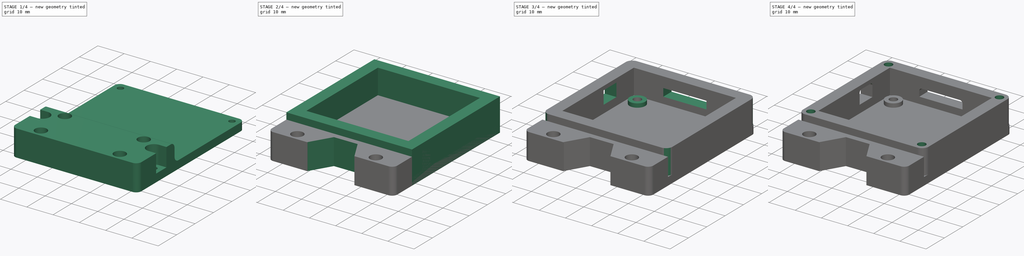
[diagram: build sequence overview — one tinted view per stage of 4, left to right]
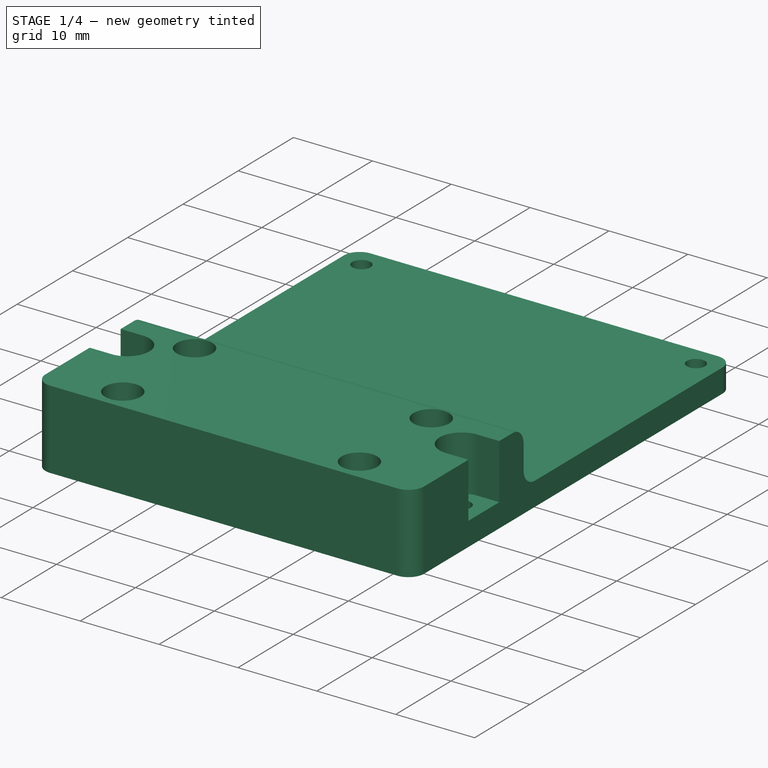
[diagram: stage 1 of 4 — iso view after this stage's code; geometry added in this stage tinted green]
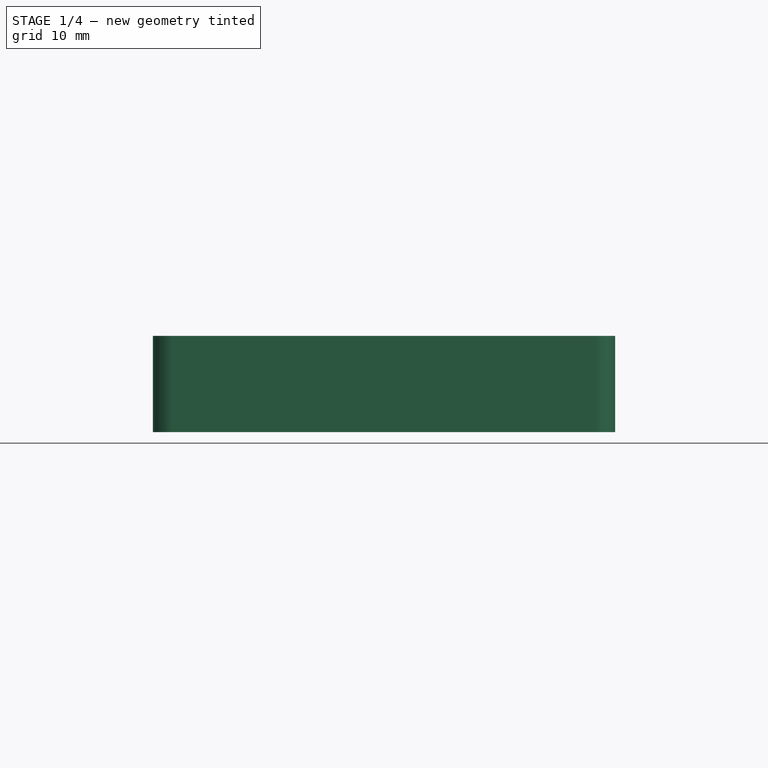
[diagram: stage 1 of 4 — front view after this stage's code; geometry added in this stage tinted green]
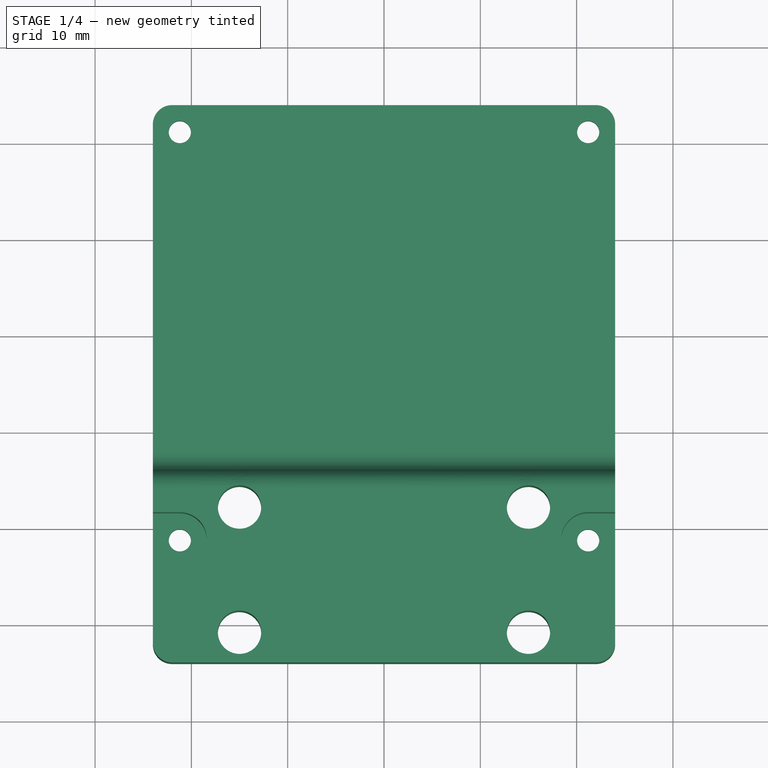
[diagram: stage 1 of 4 — top view after this stage's code; geometry added in this stage tinted green]
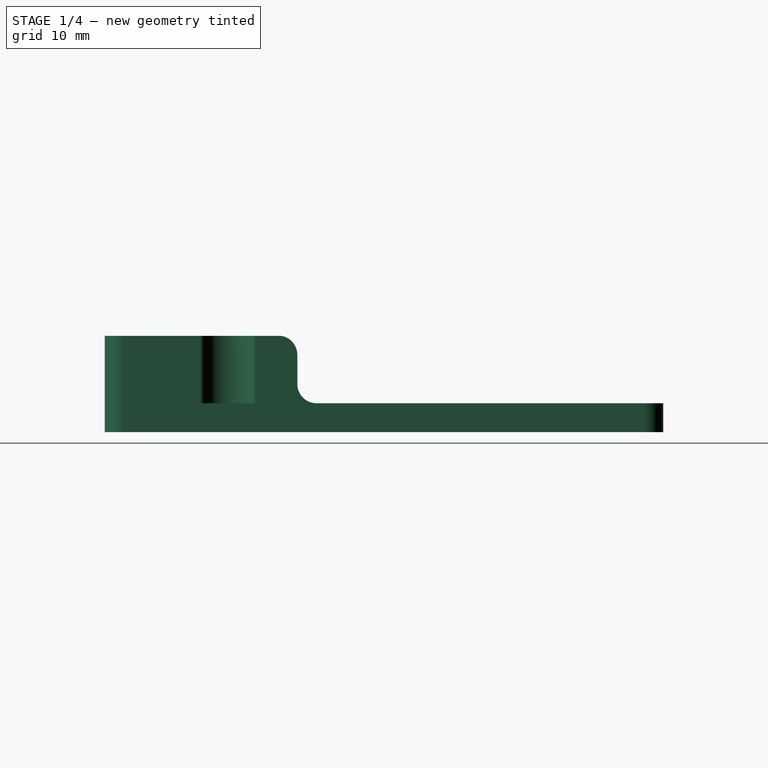
[diagram: stage 1 of 4 — right view after this stage's code; geometry added in this stage tinted green]
FCSTD DOCUMENT  (FreeCAD 1.0R38641 +468 (Git))
Label: arducam_box
License: All rights reserved
LicenseURL: https://en.wikipedia.org/wiki/All_rights_reserved
objects: Sketcher::SketchObject×9, PartDesign::Pad×5, PartDesign::Pocket×4, PartDesign::Fillet×3, PartDesign::Body×2, PartDesign::Mirrored×1
note: 58 computed .brp shape members not serialized (recipe doc carries the construction recipe); baked Part::Feature solids carry a one-line shape summary decoded from their .brp

FEATURE [PartDesign::Body] Body  label="box"
  AllowCompound = false
  Group = -> [Sketch,Pad,Sketch001,Pad001,Fillet,Sketch002,Pad002,Sketch003,Pocket,Sketch004,Pocket001,Fillet001,Sketch005,Pocket002,Mirrored]
  Origin = -> Origin
  Tip = -> Mirrored
FEATURE [Sketcher::SketchObject] Sketch006
  ArcFitTolerance = 1e-06
  AttachmentSupport = -> [XY_Plane001]
  FullyConstrained = false
  MakeInternals = false
  MapMode = 5
  sketch-geometry (23):
    g0: LineSegment [constr] StartX=-21.2 StartY=-21.2 StartZ=0 EndX=21.2 EndY=-21.2 EndZ=0
    g1: LineSegment [constr] StartX=21.2 StartY=-21.2 StartZ=0 EndX=21.2 EndY=21.2 EndZ=0
    g2: LineSegment [constr] StartX=21.2 StartY=21.2 StartZ=0 EndX=-21.2 EndY=21.2 EndZ=0
    g3: LineSegment [constr] StartX=-21.2 StartY=21.2 StartZ=0 EndX=-21.2 EndY=-21.2 EndZ=0
    g4: GeomPoint [constr] X=0 Y=0 Z=0
    g5: Circle CenterX=-21.2 CenterY=21.2 CenterZ=0 NormalX=0 NormalY=0 NormalZ=1 AngleXU=0 Radius=1.15
    g6: Circle CenterX=21.2 CenterY=21.2 CenterZ=0 NormalX=0 NormalY=0 NormalZ=1 AngleXU=0 Radius=1.15
    g7: Circle CenterX=-21.2 CenterY=-21.2 CenterZ=0 NormalX=0 NormalY=0 NormalZ=1 AngleXU=0 Radius=1.15
    g8: Circle CenterX=21.2 CenterY=-21.2 CenterZ=0 NormalX=0 NormalY=0 NormalZ=1 AngleXU=0 Radius=1.15
    g9: LineSegment [constr] StartX=-24 StartY=-24 StartZ=0 EndX=24 EndY=-24 EndZ=0
    g10: LineSegment [constr] StartX=24 StartY=-24 StartZ=0 EndX=24 EndY=24 EndZ=0
    g11: LineSegment StartX=24 StartY=24 StartZ=0 EndX=-24 EndY=24 EndZ=0
    g12: LineSegment [constr] StartX=-24 StartY=24 StartZ=0 EndX=-24 EndY=-24 EndZ=0
    g13: GeomPoint [constr] X=0 Y=0 Z=0
    g14: LineSegment StartX=-24 StartY=24 StartZ=0 EndX=-24 EndY=-34 EndZ=0
    g15: LineSegment StartX=-24 StartY=-34 StartZ=0 EndX=24 EndY=-34 EndZ=0
    g16: LineSegment StartX=24 StartY=-34 StartZ=0 EndX=24 EndY=24 EndZ=0
    g17: LineSegment [constr] StartX=-15 StartY=-17.8647 StartZ=0 EndX=15 EndY=-17.8647 EndZ=0
    g18: LineSegment [constr] StartX=-15 StartY=-30.8647 StartZ=0 EndX=15 EndY=-30.8647 EndZ=0
    g19: Circle CenterX=-15 CenterY=-17.8647 CenterZ=0 NormalX=0 NormalY=0 NormalZ=1 AngleXU=0 Radius=2.25
    g20: Circle CenterX=-15 CenterY=-30.8647 CenterZ=0 NormalX=0 NormalY=0 NormalZ=1 AngleXU=0 Radius=2.25
    g21: Circle CenterX=15 CenterY=-17.8647 CenterZ=0 NormalX=0 NormalY=0 NormalZ=1 AngleXU=0 Radius=2.25
    g22: Circle CenterX=15 CenterY=-30.8647 CenterZ=0 NormalX=0 NormalY=0 NormalZ=1 AngleXU=0 Radius=2.25
  constraints (54):
    c: Coincident(g0,g1)
    c: Coincident(g1,g2)
    c: Coincident(g2,g3)
    c: Coincident(g3,g0)
    c: Horizontal(g0)
    c: Horizontal(g2)
    c: Vertical(g1)
    c: Vertical(g3)
    c: Symmetric(g2,g0,g4)
    c: Coincident(g4,g-1)
    c: DistanceY(g1,g1) = 42.4
    c: DistanceX(g0,g0) = 42.4
    c: Coincident(g5,g2)
    c: Coincident(g6,g1)
    c: Coincident(g7,g0)
    c: Coincident(g8,g0)
    c: Equal(g6,g5)
    c: Equal(g5,g7)
    c: Equal(g7,g8)
    c: Diameter(g6) = 2.3
    c: Coincident(g9,g10)
    c: Coincident(g10,g11)
    c: Coincident(g11,g12)
    c: Coincident(g12,g9)
    c: Horizontal(g9)
    c: Horizontal(g11)
    c: Vertical(g10)
    c: Vertical(g12)
    c: Symmetric(g11,g9,g13)
    c: Coincident(g13,g4)
    c: Equal(g10,g11)
    c: DistanceY(g10,g10) = 48
    c: Coincident(g11,g14)
    c: Vertical(g14)
    c: Coincident(g14,g15)
    c: Coincident(g15,g16)
    c: Coincident(g16,g10)
    c: Vertical(g16)
    c: Horizontal(g15)
    c: DistanceY(g15,g9) = 10
    c: Horizontal(g18)
    c: Vertical(g17,g18)
    c: Symmetric(g17,g17,g-2)
    c: Vertical(g18,g17)
    c: DistanceX(g17,g17) = 30
    c: DistanceY(g18,g17) = 13
    c: Coincident(g19,g17)
    c: Coincident(g20,g18)
    c: Coincident(g21,g17)
    c: Coincident(g22,g18)
    c: Equal(g22,g21)
    c: Equal(g21,g20)
    c: Equal(g20,g19)
    c: Diameter(g21) = 4.5
FEATURE [PartDesign::Pad] Pad003
  Direction = (0,0,1)
  Length = 3
  Length2 = 10
  Profile = -> Sketch006
  ReferenceAxis = -> Sketch006 [N_Axis]
  Refine = true
  Suppressed = false
  Type = 0
FEATURE [Sketcher::SketchObject] Sketch007
  ArcFitTolerance = 1e-06
  AttachmentSupport = -> [Pad003]
  ExternalGeometry = -> [Pad003]
  FullyConstrained = false
  MakeInternals = false
  MapMode = 5
  Placement = pos=(0,0,3) rot=(0,0,1;0rad)
  sketch-geometry (20):
    g0: LineSegment [constr] StartX=24 StartY=-34 StartZ=0 EndX=24 EndY=-14 EndZ=0
    g1: LineSegment StartX=24 StartY=-14 StartZ=0 EndX=-24 EndY=-14 EndZ=0
    g2: LineSegment [constr] StartX=-24 StartY=-14 StartZ=0 EndX=-24 EndY=-34 EndZ=0
    g3: LineSegment StartX=-24 StartY=-34 StartZ=0 EndX=24 EndY=-34 EndZ=0
    g4: Circle CenterX=-15 CenterY=-17.8647 CenterZ=0 NormalX=0 NormalY=0 NormalZ=1 AngleXU=0 Radius=2.25
    g5: Circle [constr] CenterX=-21.2179 CenterY=-21.2179 CenterZ=0 NormalX=0 NormalY=0 NormalZ=1 AngleXU=0 Radius=2.78208
    g6: Circle CenterX=-15 CenterY=-30.8647 CenterZ=0 NormalX=0 NormalY=0 NormalZ=1 AngleXU=0 Radius=2.25
    g7: Circle CenterX=15 CenterY=-30.8647 CenterZ=0 NormalX=0 NormalY=0 NormalZ=1 AngleXU=0 Radius=2.25
    g8: Circle CenterX=15 CenterY=-17.8647 CenterZ=0 NormalX=0 NormalY=0 NormalZ=1 AngleXU=0 Radius=2.25
    g9: Circle [constr] CenterX=21.2 CenterY=-21.2 CenterZ=0 NormalX=0 NormalY=0 NormalZ=1 AngleXU=0 Radius=2.8
    g10: LineSegment StartX=-24 StartY=-34 StartZ=0 EndX=-24 EndY=-24 EndZ=0
    g11: LineSegment StartX=-24 StartY=-24 StartZ=0 EndX=-21.2179 EndY=-24 EndZ=0
    g12: LineSegment StartX=-21.2 StartY=-18.3999 StartZ=0 EndX=-24 EndY=-18.4 EndZ=0
    g13: LineSegment StartX=-24 StartY=-18.4 StartZ=0 EndX=-24 EndY=-14 EndZ=0
    g14: LineSegment StartX=24 StartY=-14 StartZ=0 EndX=24 EndY=-18.4006 EndZ=0
    g15: LineSegment StartX=24 StartY=-18.4006 StartZ=0 EndX=21.1412 EndY=-18.4006 EndZ=0
    g16: LineSegment StartX=21.2 StartY=-24 StartZ=0 EndX=24 EndY=-24 EndZ=0
    g17: LineSegment StartX=24 StartY=-24 StartZ=0 EndX=24 EndY=-34 EndZ=0
    g18: ArcOfCircle CenterX=21.2 CenterY=-21.2 CenterZ=0 NormalX=0 NormalY=0 NormalZ=1 AngleXU=0 Radius=2.8 StartAngle=1.59179 EndAngle=4.71239
    g19: ArcOfCircle CenterX=-21.2 CenterY=-21.2 CenterZ=0 NormalX=0 NormalY=0 NormalZ=1 AngleXU=0 Radius=2.80006 StartAngle=4.70599 EndAngle=7.85398
  constraints (45):
    c: Coincident(g0,g1)
    c: Coincident(g1,g2)
    c: Coincident(g2,g3)
    c: Coincident(g3,g0)
    c: Horizontal(g1)
    c: Horizontal(g3)
    c: Coincident(g0,g-4)
    c: PointOnObject(g1,g-3)
    c: Coincident(g4,g-6)
    c: Equal(g4,g-6)
    c: Coincident(g6,g-5)
    c: Equal(g6,g-5)
    c: Coincident(g7,g-8)
    c: Equal(g7,g-8)
    c: Coincident(g8,g-7)
    c: Equal(g8,g-7)
    c: Coincident(g9,g-10)
    c: Tangent(g9,g0)
    c: Tangent(g5,g2)
    c: Coincident(g2,g10)
    c: Symmetric(g2,g2,g10)
    c: Vertical(g10)
    c: Coincident(g10,g11)
    c: PointOnObject(g11,g5)
    c: Tangent(g11,g5)
    c: PointOnObject(g12,g2)
    c: Coincident(g12,g13)
    c: Coincident(g13,g1)
    c: Coincident(g0,g14)
    c: PointOnObject(g14,g0)
    c: Vertical(g14)
    c: Coincident(g14,g15)
    c: PointOnObject(g15,g9)
    c: Symmetric(g0,g0,g16)
    c: Coincident(g16,g17)
    c: Coincident(g17,g0)
    c: Horizontal(g11)
    c: Horizontal(g16)
    c: Horizontal(g15)
    c: Coincident(g18,g9)
    c: Coincident(g18,g16)
    c: Coincident(g18,g15)
    c: Coincident(g19,g-9)
    c: Coincident(g19,g11)
    c: Coincident(g19,g12)
FEATURE [PartDesign::Pad] Pad004
  BaseFeature = -> Pad003
  Direction = (0,0,1)
  Length = 7
  Length2 = 10
  Profile = -> Sketch007
  ReferenceAxis = -> Sketch007 [N_Axis]
  Refine = true
  Suppressed = false
  Type = 0
FEATURE [PartDesign::Fillet] Fillet002
  Base = -> Pad004 [Edge17,Edge37,Edge1,Edge2,Edge62,Edge61]
  BaseFeature = -> Pad004
  Radius = 2
  Refine = true
  SupportTransform = false
  Suppressed = false
  UseAllEdges = false
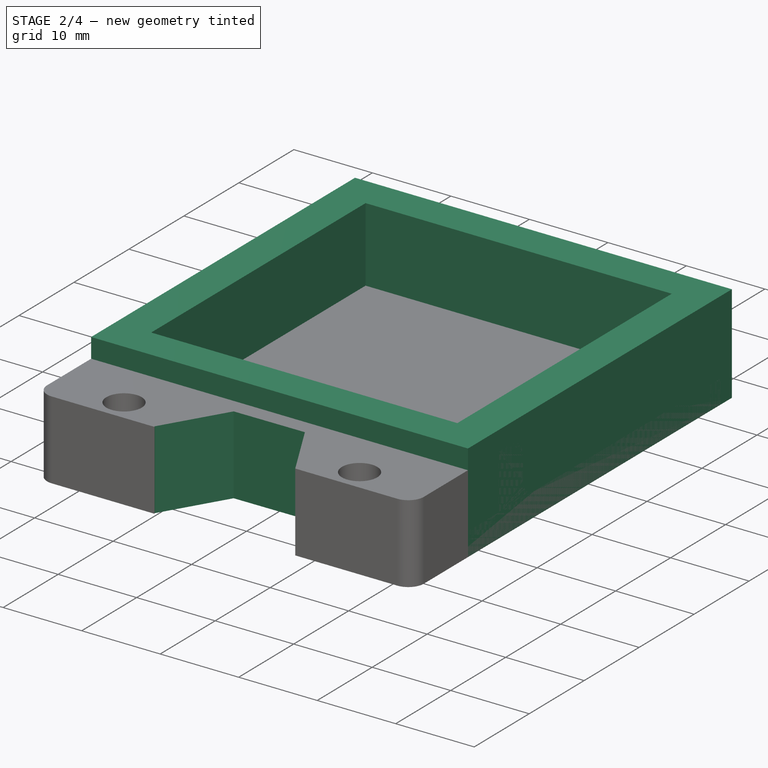
[diagram: stage 2 of 4 — iso view after this stage's code; geometry added in this stage tinted green]
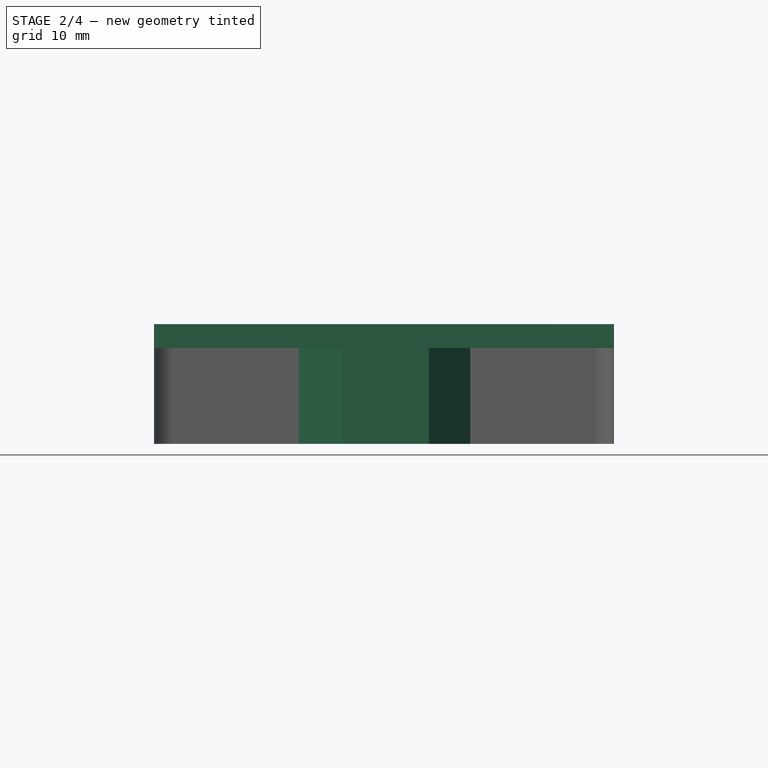
[diagram: stage 2 of 4 — front view after this stage's code; geometry added in this stage tinted green]
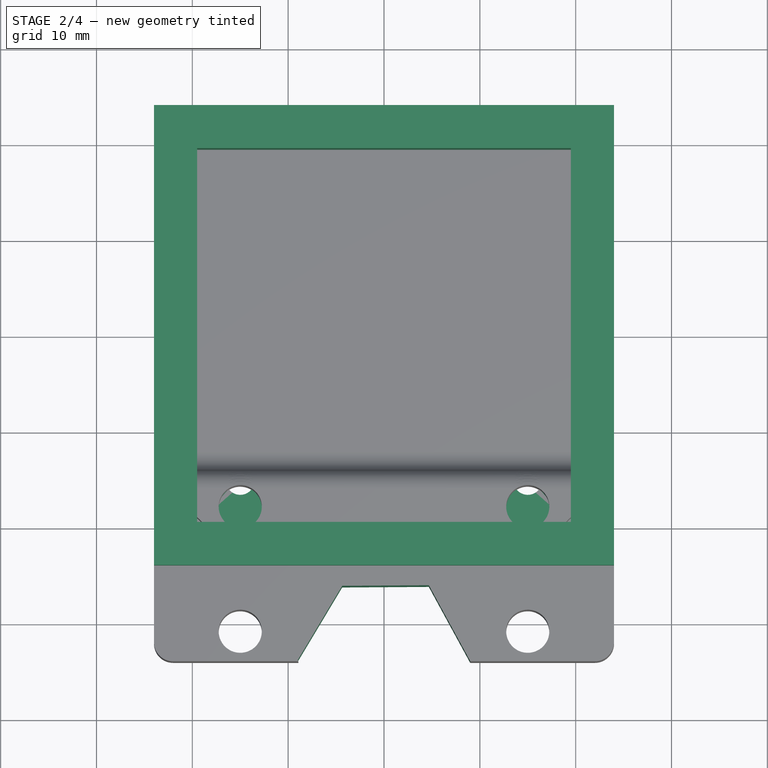
[diagram: stage 2 of 4 — top view after this stage's code; geometry added in this stage tinted green]
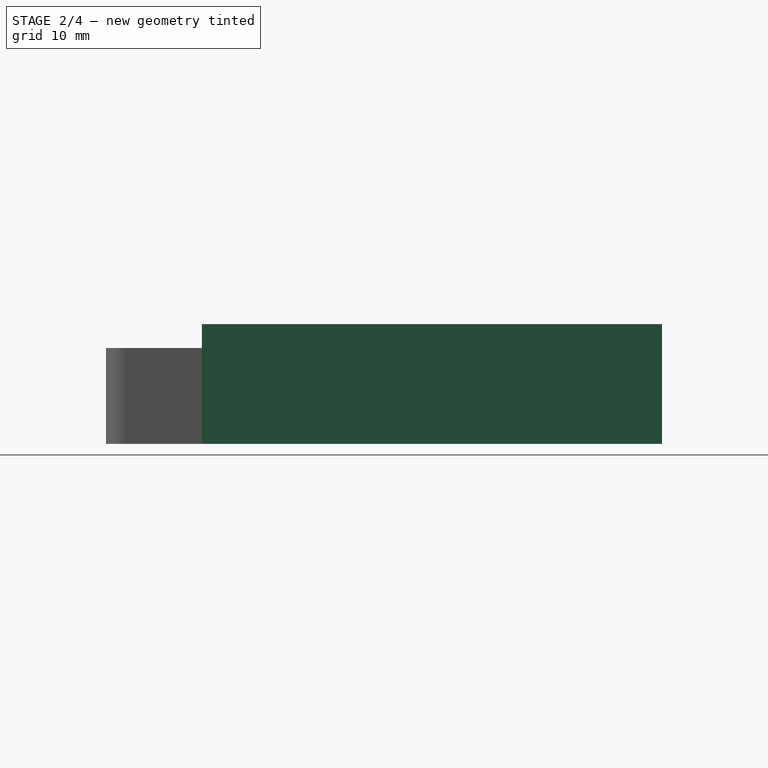
[diagram: stage 2 of 4 — right view after this stage's code; geometry added in this stage tinted green]
FEATURE [Sketcher::SketchObject] Sketch
  ArcFitTolerance = 1e-06
  AttachmentSupport = -> [XY_Plane]
  FullyConstrained = false
  MakeInternals = false
  MapMode = 5
  sketch-geometry (27):
    g0: Circle [constr] CenterX=10.15 CenterY=0 CenterZ=0 NormalX=0 NormalY=0 NormalZ=1 AngleXU=0 Radius=3.5
    g1: Circle [constr] CenterX=-10.15 CenterY=0 CenterZ=0 NormalX=0 NormalY=0 NormalZ=1 AngleXU=0 Radius=3.5
    g2: ArcOfCircle CenterX=-10.15 CenterY=0 CenterZ=0 NormalX=0 NormalY=0 NormalZ=1 AngleXU=0 Radius=3.5 StartAngle=1.5708 EndAngle=4.71239
    g3: ArcOfCircle CenterX=10.15 CenterY=0 CenterZ=0 NormalX=0 NormalY=0 NormalZ=1 AngleXU=0 Radius=3.5 StartAngle=4.71239 EndAngle=7.85398
    g4: LineSegment [constr] StartX=10.15 StartY=-7.3 StartZ=0 EndX=10.15 EndY=7.3 EndZ=0
    g5: LineSegment [constr] StartX=15 StartY=-15 StartZ=0 EndX=15 EndY=15 EndZ=0
    g6: LineSegment [constr] StartX=15 StartY=15 StartZ=0 EndX=-15 EndY=15 EndZ=0
    g7: LineSegment [constr] StartX=-15 StartY=15 StartZ=0 EndX=-15 EndY=-15 EndZ=0
    g8: LineSegment [constr] StartX=-15 StartY=-15 StartZ=0 EndX=15 EndY=-15 EndZ=0
    g9: Circle CenterX=-15 CenterY=15 CenterZ=0 NormalX=0 NormalY=0 NormalZ=1 AngleXU=0 Radius=1.5
    g10: Circle CenterX=15 CenterY=15 CenterZ=0 NormalX=0 NormalY=0 NormalZ=1 AngleXU=0 Radius=1.5
    g11: Circle CenterX=15 CenterY=-15 CenterZ=0 NormalX=0 NormalY=0 NormalZ=1 AngleXU=0 Radius=1.5
    g12: Circle CenterX=-15 CenterY=-15 CenterZ=0 NormalX=0 NormalY=0 NormalZ=1 AngleXU=0 Radius=1.5
    g13: LineSegment [constr] StartX=10.15 StartY=-7.3 StartZ=0 EndX=10.15 EndY=7.3 EndZ=0
    g14: LineSegment [constr] StartX=-10.15 StartY=7.3 StartZ=0 EndX=-10.15 EndY=-7.3 EndZ=0
    g15: GeomPoint [constr] X=0 Y=0 Z=0
    g16: LineSegment StartX=-10.15 StartY=7.3 StartZ=0 EndX=10.15 EndY=7.3 EndZ=0
    g17: LineSegment StartX=10.15 StartY=7.3 StartZ=0 EndX=10.15 EndY=3.5 EndZ=0
    g18: LineSegment StartX=-10.15 StartY=3.5 StartZ=0 EndX=-10.15 EndY=7.3 EndZ=0
    g19: LineSegment StartX=-10.15 StartY=-3.5 StartZ=0 EndX=-10.15 EndY=-7.3 EndZ=0
    g20: LineSegment StartX=-10.15 StartY=-7.3 StartZ=0 EndX=10.15 EndY=-7.3 EndZ=0
    g21: LineSegment StartX=10.15 StartY=-7.3 StartZ=0 EndX=10.15 EndY=-3.5 EndZ=0
    g22: LineSegment StartX=-24 StartY=-24 StartZ=0 EndX=24 EndY=-24 EndZ=0
    g23: LineSegment StartX=24 StartY=-24 StartZ=0 EndX=24 EndY=24 EndZ=0
    g24: LineSegment StartX=-24 StartY=24 StartZ=0 EndX=-24 EndY=-24 EndZ=0
    g25: GeomPoint [constr] X=0 Y=0 Z=0
    g26: LineSegment StartX=-24 StartY=24 StartZ=0 EndX=24 EndY=24 EndZ=0
  constraints (61):
    c: PointOnObject(g0,g-1)
    c: PointOnObject(g3,g0)
    c: PointOnObject(g1,g-1)
    c: PointOnObject(g2,g1)
    c: Vertical(g1,g2)
    c: Vertical(g3,g0)
    c: Coincident(g2,g1)
    c: Coincident(g3,g0)
    c: Vertical(g4)
    c: PointOnObject(g3,g4)
    c: PointOnObject(g3,g4)
    c: DistanceY(g4,g4) = 14.6
    c: Radius(g3) = 3.5
    c: Radius(g2) = 3.5
    c: Vertical(g5)
    c: Vertical(g7)
    c: Horizontal(g6)
    c: Horizontal(g8)
    c: DistanceX(g6,g6) = 30
    c: DistanceY(g5,g5) = 30
    c: Coincident(g9,g6)
    c: Diameter(g10) = 3
    c: Coincident(g10,g5)
    c: Coincident(g11,g5)
    c: Coincident(g12,g7)
    c: Equal(g10,g9)
    c: Equal(g9,g12)
    c: Equal(g12,g11)
    c: Vertical(g13)
    c: Vertical(g14)
    c: Coincident(g15,g-1)
    c: Symmetric(g14,g4,g15)
    c: PointOnObject(g2,g14)
    c: Coincident(g14,g16)
    c: Coincident(g16,g4)
    c: Horizontal(g16)
    c: Coincident(g16,g17)
    c: Coincident(g17,g3)
    c: Coincident(g18,g2)
    c: Coincident(g18,g14)
    c: Vertical(g18)
    c: Coincident(g19,g2)
    c: Coincident(g19,g14)
    c: Coincident(g20,g14)
    c: Coincident(g20,g4)
    c: Horizontal(g20)
    c: Coincident(g21,g13)
    c: Coincident(g21,g3)
    c: Vertical(g21)
    c: Coincident(g22,g23)
    c: Coincident(g24,g22)
    c: Horizontal(g22)
    c: Vertical(g23)
    c: Vertical(g24)
    c: Symmetric(g23,g22,g25)
    c: Coincident(g25,g15)
    c: Coincident(g24,g26)
    c: Coincident(g26,g23)
    c: Horizontal(g26)
    c: DistanceX(g26,g26) = 48
    c: DistanceY(g23,g23) = 48
FEATURE [PartDesign::Pad] Pad
  Direction = (0,0,1)
  Length = 2.5
  Length2 = 10
  Profile = -> Sketch
  ReferenceAxis = -> Sketch [N_Axis]
  Refine = true
  Suppressed = false
  Type = 0
FEATURE [Sketcher::SketchObject] Sketch001
  ArcFitTolerance = 1e-06
  AttachmentSupport = -> [Pad]
  ExternalGeometry = -> [Pad]
  FullyConstrained = true
  MakeInternals = false
  MapMode = 5
  Placement = pos=(0,0,2.5) rot=(0,0,1;0rad)
  sketch-geometry (10):
    g0: LineSegment StartX=-24 StartY=-24 StartZ=0 EndX=24 EndY=-24 EndZ=0
    g1: LineSegment StartX=24 StartY=-24 StartZ=0 EndX=24 EndY=24 EndZ=0
    g2: LineSegment StartX=24 StartY=24 StartZ=0 EndX=-24 EndY=24 EndZ=0
    g3: LineSegment StartX=-24 StartY=24 StartZ=0 EndX=-24 EndY=-24 EndZ=0
    g4: GeomPoint [constr] X=0 Y=0 Z=0
    g5: LineSegment StartX=-19.5 StartY=-19.5 StartZ=0 EndX=19.5 EndY=-19.5 EndZ=0
    g6: LineSegment StartX=19.5 StartY=-19.5 StartZ=0 EndX=19.5 EndY=19.5 EndZ=0
    g7: LineSegment StartX=19.5 StartY=19.5 StartZ=0 EndX=-19.5 EndY=19.5 EndZ=0
    g8: LineSegment StartX=-19.5 StartY=19.5 StartZ=0 EndX=-19.5 EndY=-19.5 EndZ=0
    g9: GeomPoint [constr] X=0 Y=0 Z=0
  constraints (23):
    c: Coincident(g0,g1)
    c: Coincident(g1,g2)
    c: Coincident(g2,g3)
    c: Coincident(g3,g0)
    c: Horizontal(g0)
    c: Horizontal(g2)
    c: Vertical(g1)
    c: Vertical(g3)
    c: Symmetric(g2,g0,g4)
    c: Coincident(g4,g-1)
    c: Coincident(g1,g-3)
    c: Coincident(g5,g6)
    c: Coincident(g6,g7)
    c: Coincident(g7,g8)
    c: Coincident(g8,g5)
    c: Horizontal(g5)
    c: Horizontal(g7)
    c: Vertical(g6)
    c: Vertical(g8)
    c: Symmetric(g7,g5,g9)
    c: Coincident(g9,g4)
    c: DistanceX(g6,g1) = 4.5
    c: DistanceY(g6,g1) = 4.5
FEATURE [PartDesign::Pad] Pad001
  BaseFeature = -> Pad
  Direction = (0,0,1)
  Length = 10
  Length2 = 10
  Profile = -> Sketch001
  ReferenceAxis = -> Sketch001 [N_Axis]
  Refine = true
  Suppressed = false
  Type = 0
FEATURE [Sketcher::SketchObject] Sketch008
  ArcFitTolerance = 1e-06
  AttachmentSupport = -> [Fillet002]
  ExternalGeometry = -> [Fillet002]
  FullyConstrained = false
  MakeInternals = false
  MapMode = 5
  Placement = pos=(0,0,0) rot=(1,0,0;3.14159rad)
  sketch-geometry (7):
    g0: LineSegment StartX=4.46484 StartY=41.8144 StartZ=0 EndX=-4.57004 EndY=41.7534 EndZ=0
    g1: LineSegment StartX=-4.57004 StartY=41.7534 StartZ=0 EndX=-8.99918 EndY=33.8784 EndZ=0
    g2: LineSegment StartX=-8.99918 StartY=33.8784 StartZ=0 EndX=-4.35884 EndY=26.126 EndZ=0
    g3: LineSegment StartX=-4.35884 StartY=26.126 StartZ=0 EndX=4.67606 EndY=26.0668 EndZ=0
    g4: LineSegment StartX=4.67606 StartY=26.0668 StartZ=0 EndX=9 EndY=34 EndZ=0
    g5: LineSegment StartX=9 StartY=34 StartZ=0 EndX=4.46484 EndY=41.8144 EndZ=0
    g6: Circle [constr] CenterX=3.9e-15 CenterY=34 CenterZ=0 NormalX=0 NormalY=0 NormalZ=1 AngleXU=0 Radius=9
  constraints (15):
    c: Coincident(g0,g1)
    c: Coincident(g1,g2)
    c: Coincident(g2,g3)
    c: Coincident(g3,g4)
    c: Coincident(g4,g5)
    c: Coincident(g5,g0)
    c: Equal(g0, g1-g5) x5
    c: PointOnObject(g0,g6)
    c: PointOnObject(g1,g6)
    c: PointOnObject(g2,g6)
    c: PointOnObject(g4,g6)
    c: PointOnObject(g5,g6)
    c: Symmetric(g-3,g-3,g6)
    c: Diameter(g6) = 18
    c: PointOnObject(g4,g-3)
FEATURE [PartDesign::Pocket] Pocket003
  BaseFeature = -> Fillet002
  Direction = (0,0,1)
  Length = 5
  Length2 = 5
  Profile = -> Sketch008
  ReferenceAxis = -> Sketch008 [N_Axis]
  Refine = true
  Suppressed = false
  Type = 1
FEATURE [PartDesign::Body] Body001  label="lid"
  AllowCompound = false
  Group = -> [Sketch006,Pad003,Sketch007,Pad004,Fillet002,Sketch008,Pocket003]
  Origin = -> Origin001
  Tip = -> Pocket003
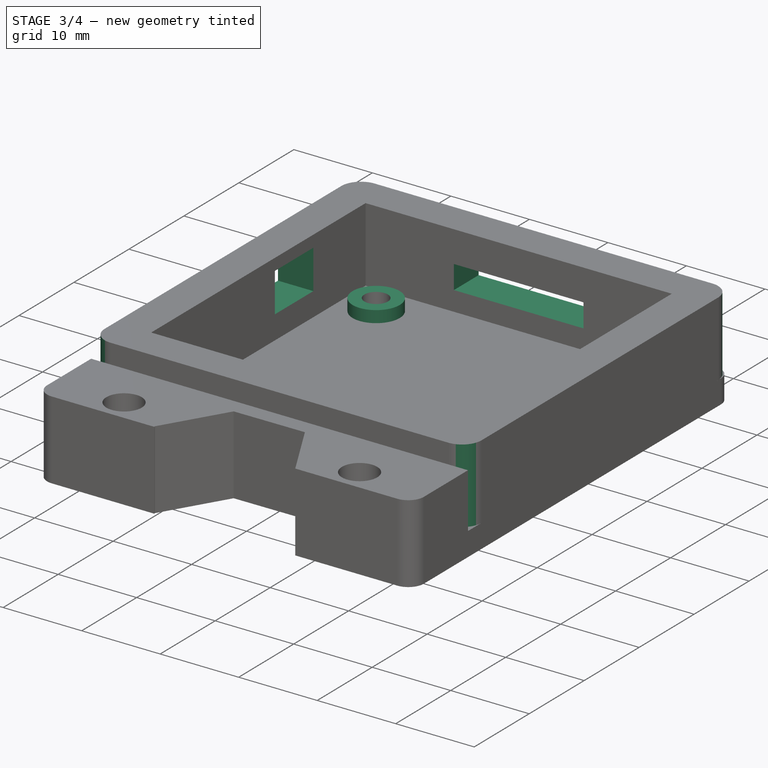
[diagram: stage 3 of 4 — iso view after this stage's code; geometry added in this stage tinted green]
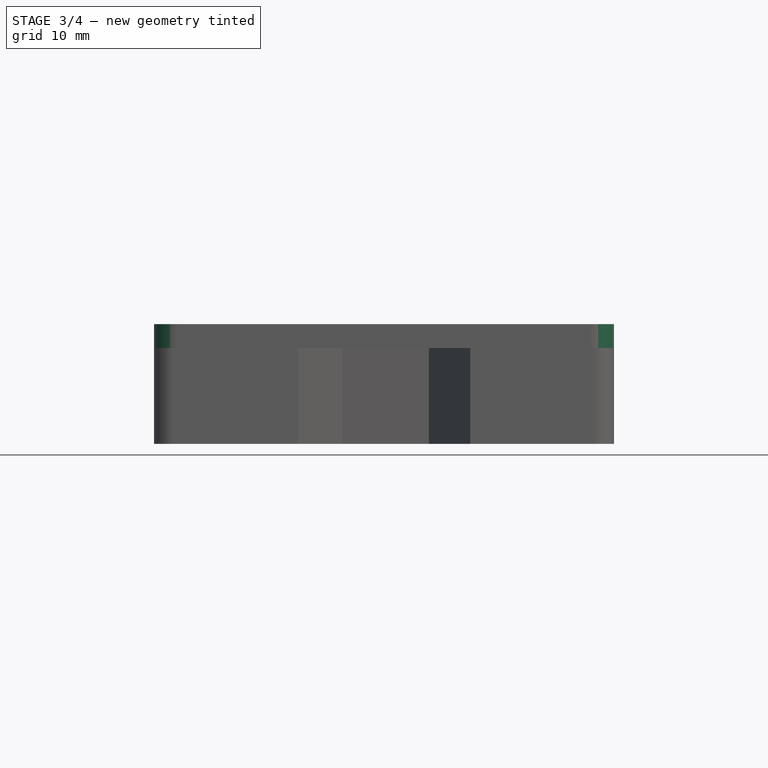
[diagram: stage 3 of 4 — front view after this stage's code; geometry added in this stage tinted green]
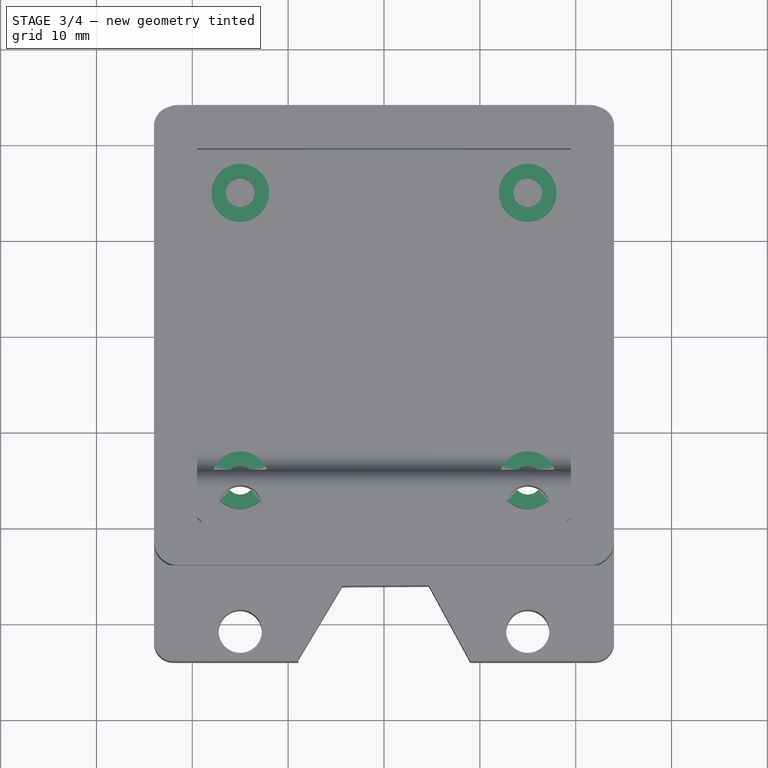
[diagram: stage 3 of 4 — top view after this stage's code; geometry added in this stage tinted green]
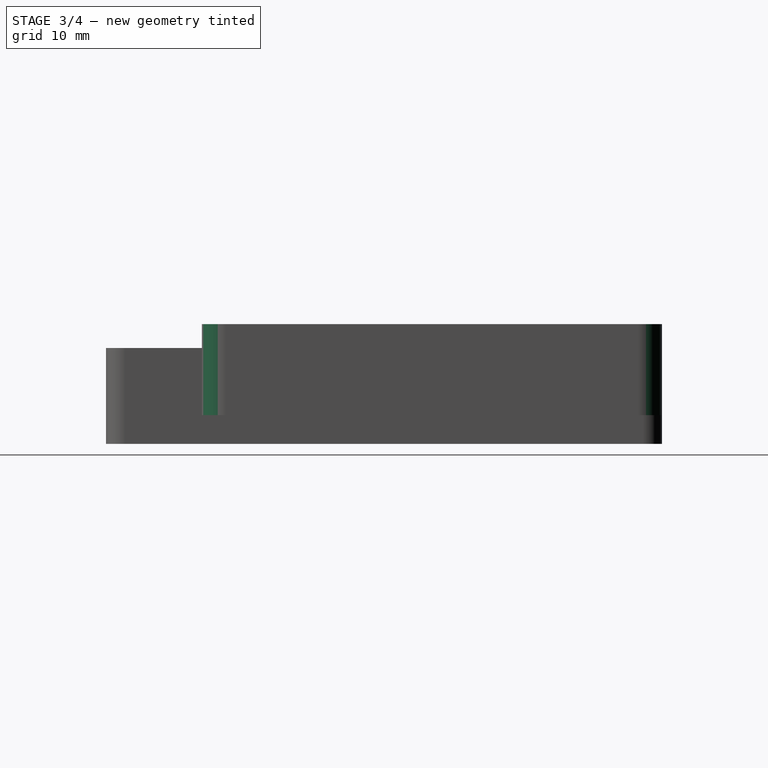
[diagram: stage 3 of 4 — right view after this stage's code; geometry added in this stage tinted green]
FEATURE [PartDesign::Fillet] Fillet
  Base = -> Pad001 [Edge57,Edge58,Edge60,Edge59]
  BaseFeature = -> Pad001
  Radius = 2.5
  Refine = true
  SupportTransform = false
  Suppressed = false
  UseAllEdges = false
FEATURE [Sketcher::SketchObject] Sketch002
  ArcFitTolerance = 1e-06
  AttachmentSupport = -> [Fillet]
  ExternalGeometry = -> [Fillet]
  FullyConstrained = false
  MakeInternals = false
  MapMode = 5
  Placement = pos=(0,0,2.5) rot=(0,0,1;0rad)
  sketch-geometry (8):
    g0: Circle CenterX=15 CenterY=15 CenterZ=0 NormalX=0 NormalY=0 NormalZ=1 AngleXU=0 Radius=1.5
    g1: Circle CenterX=15 CenterY=15 CenterZ=0 NormalX=0 NormalY=0 NormalZ=1 AngleXU=0 Radius=3
    g2: Circle CenterX=-15 CenterY=15 CenterZ=0 NormalX=0 NormalY=0 NormalZ=1 AngleXU=0 Radius=1.5
    g3: Circle CenterX=-15 CenterY=15 CenterZ=0 NormalX=0 NormalY=0 NormalZ=1 AngleXU=0 Radius=3
    g4: Circle CenterX=15 CenterY=-15 CenterZ=0 NormalX=0 NormalY=0 NormalZ=1 AngleXU=0 Radius=1.5
    g5: Circle CenterX=15 CenterY=-15 CenterZ=0 NormalX=0 NormalY=0 NormalZ=1 AngleXU=0 Radius=3
    g6: Circle CenterX=-15 CenterY=-15 CenterZ=0 NormalX=0 NormalY=0 NormalZ=1 AngleXU=0 Radius=1.5
    g7: Circle CenterX=-15 CenterY=-15 CenterZ=0 NormalX=0 NormalY=0 NormalZ=1 AngleXU=0 Radius=3
  constraints (8):
    c: Coincident(g1,g0)
    c: Diameter(g1) = 6
    c: Coincident(g3,g2)
    c: Coincident(g5,g4)
    c: Coincident(g7,g6)
    c: Diameter(g3) = 6
    c: Diameter(g5) = 6
    c: Diameter(g7) = 6
FEATURE [PartDesign::Pad] Pad002
  BaseFeature = -> Fillet
  Direction = (0,0,1)
  Length = 2
  Length2 = 10
  Profile = -> Sketch002
  ReferenceAxis = -> Sketch002 [N_Axis]
  Refine = true
  Suppressed = false
  Type = 0
FEATURE [Sketcher::SketchObject] Sketch003
  ArcFitTolerance = 1e-06
  AttachmentSupport = -> [Pad002]
  ExternalGeometry = -> [Pad002]
  FullyConstrained = true
  MakeInternals = false
  MapMode = 5
  Placement = pos=(0,19.5,0) rot=(1,0,0;1.5708rad)
  sketch-geometry (5):
    g0: LineSegment StartX=-8.25 StartY=5.5 StartZ=0 EndX=8.25 EndY=5.5 EndZ=0
    g1: LineSegment StartX=8.25 StartY=5.5 StartZ=0 EndX=8.25 EndY=8.5 EndZ=0
    g2: LineSegment StartX=8.25 StartY=8.5 StartZ=0 EndX=-8.25 EndY=8.5 EndZ=0
    g3: LineSegment StartX=-8.25 StartY=8.5 StartZ=0 EndX=-8.25 EndY=5.5 EndZ=0
    g4: GeomPoint [constr] X=0 Y=7 Z=0
  constraints (13):
    c: Coincident(g0,g1)
    c: Coincident(g1,g2)
    c: Coincident(g2,g3)
    c: Coincident(g3,g0)
    c: Horizontal(g0)
    c: Horizontal(g2)
    c: Vertical(g1)
    c: Vertical(g3)
    c: Symmetric(g2,g0,g4)
    c: PointOnObject(g4,g-2)
    c: DistanceX(g2,g2) = 16.5
    c: DistanceY(g1,g1) = 3
    c: DistanceY(g-3,g0) = 3
FEATURE [PartDesign::Pocket] Pocket
  BaseFeature = -> Pad002
  Direction = (0,1,-2e-16)
  Length = 5
  Length2 = 5
  Profile = -> Sketch003
  ReferenceAxis = -> Sketch003 [N_Axis]
  Refine = true
  Suppressed = false
  Type = 0
FEATURE [Sketcher::SketchObject] Sketch004
  ArcFitTolerance = 1e-06
  AttachmentSupport = -> [Pocket]
  ExternalGeometry = -> [Pocket]
  FullyConstrained = true
  MakeInternals = false
  MapMode = 5
  Placement = pos=(-19.5,0,0) rot=(0.57735,0.57735,0.57735;2.0944rad)
  sketch-geometry (5):
    g0: LineSegment StartX=3 StartY=11 StartZ=0 EndX=3 EndY=6 EndZ=0
    g1: LineSegment StartX=3 StartY=6 StartZ=0 EndX=10 EndY=6 EndZ=0
    g2: LineSegment StartX=10 StartY=6 StartZ=0 EndX=10 EndY=11 EndZ=0
    g3: LineSegment StartX=10 StartY=11 StartZ=0 EndX=3 EndY=11 EndZ=0
    g4: GeomPoint [constr] X=6.5 Y=8.5 Z=0
  constraints (13):
    c: Coincident(g0,g1)
    c: Coincident(g1,g2)
    c: Coincident(g2,g3)
    c: Coincident(g3,g0)
    c: Vertical(g0)
    c: Vertical(g2)
    c: Horizontal(g1)
    c: Horizontal(g3)
    c: Symmetric(g2,g0,g4)
    c: DistanceX(g3,g3) = 7
    c: DistanceX(g4,g-3) = 13
    c: Distance(g2,g2) = 5
    c: DistanceY(g-3,g1) = 3.5
FEATURE [PartDesign::Pocket] Pocket001
  BaseFeature = -> Pocket
  Direction = (-1,0,0)
  Length = 5
  Length2 = 5
  Profile = -> Sketch004
  ReferenceAxis = -> Sketch004 [N_Axis]
  Refine = true
  Suppressed = false
  Type = 0
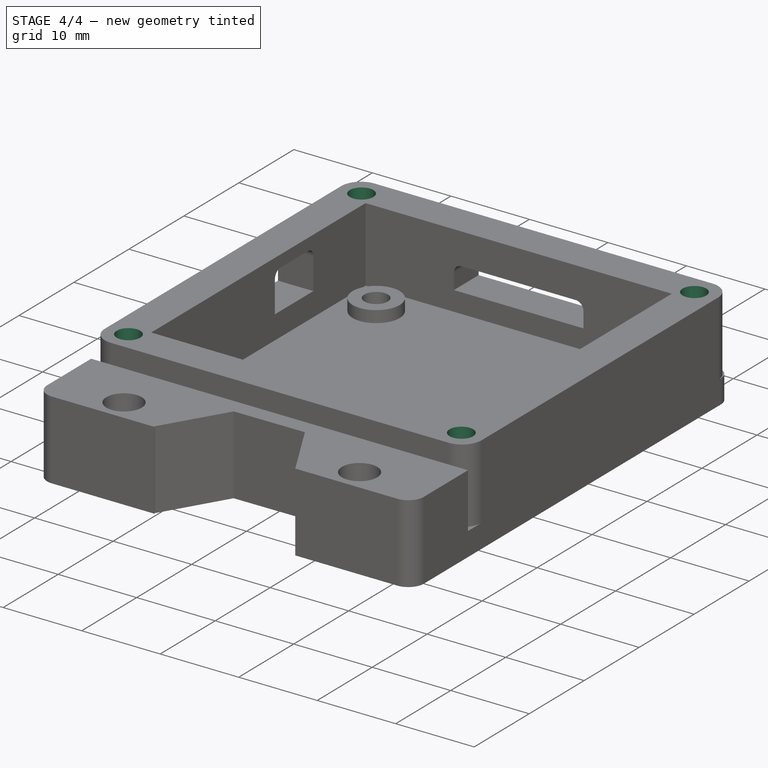
[diagram: stage 4 of 4 — iso view after this stage's code; geometry added in this stage tinted green]
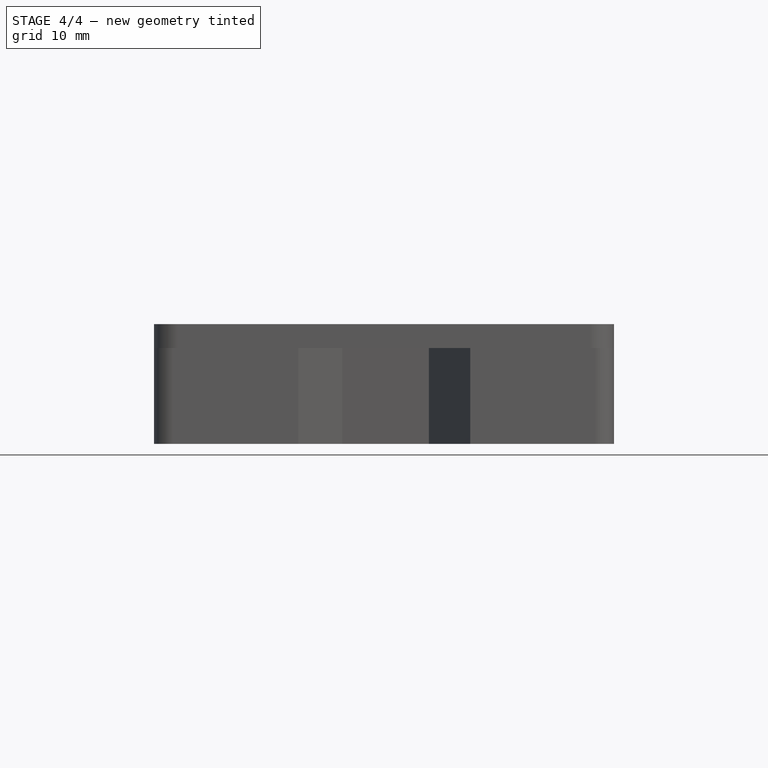
[diagram: stage 4 of 4 — front view after this stage's code; geometry added in this stage tinted green]
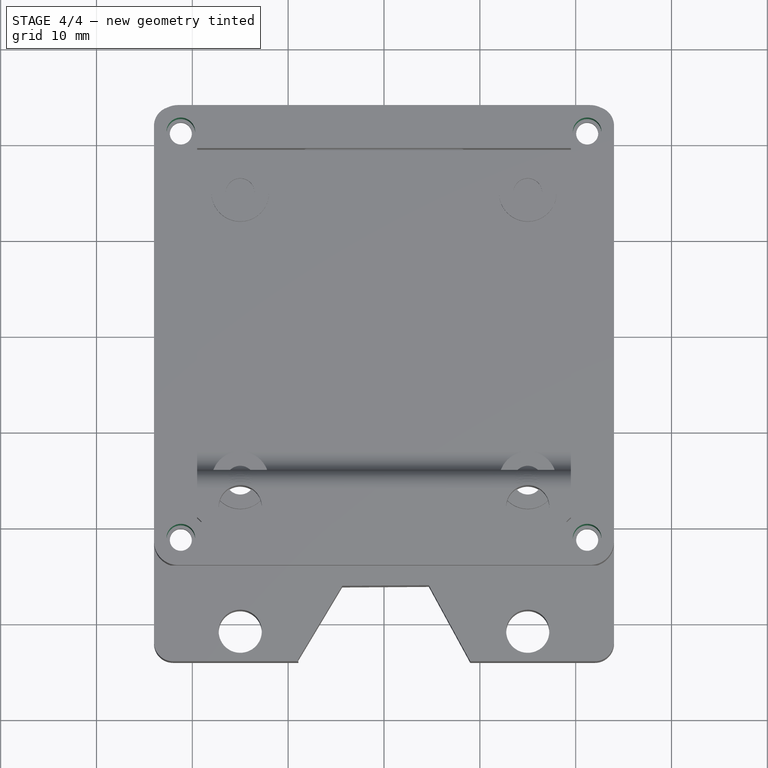
[diagram: stage 4 of 4 — top view after this stage's code; geometry added in this stage tinted green]
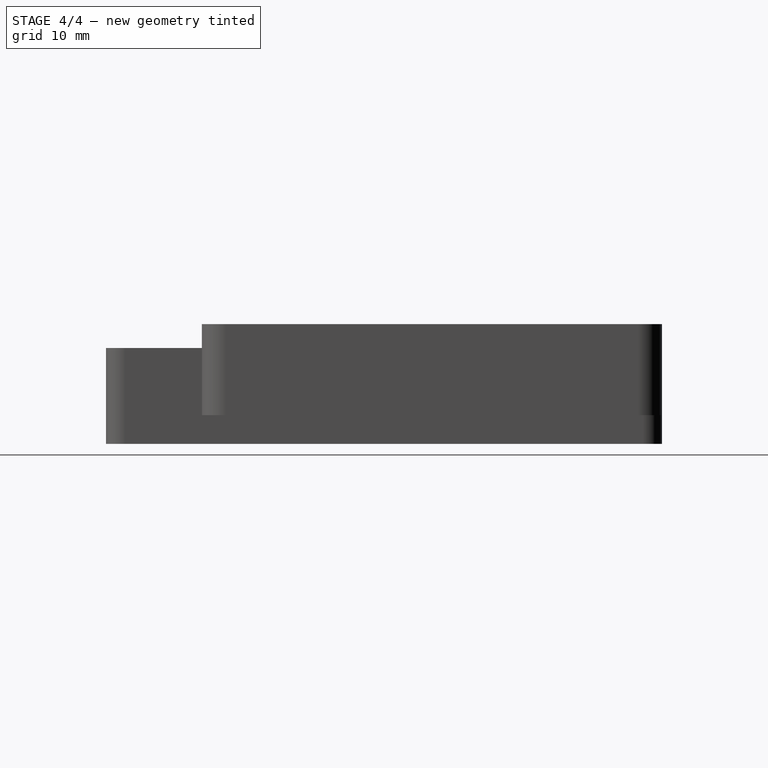
[diagram: stage 4 of 4 — right view after this stage's code; geometry added in this stage tinted green]
FEATURE [PartDesign::Fillet] Fillet001
  Base = -> Pocket001 [Edge75,Edge77,Edge85,Edge87]
  BaseFeature = -> Pocket001
  Radius = 1
  Refine = true
  SupportTransform = false
  Suppressed = false
  UseAllEdges = false
FEATURE [Sketcher::SketchObject] Sketch005
  ArcFitTolerance = 1e-06
  AttachmentSupport = -> [Fillet001]
  ExternalGeometry = -> [Fillet001]
  FullyConstrained = true
  MakeInternals = false
  MapMode = 5
  Placement = pos=(0,0,12.5) rot=(0,0,1;0rad)
  sketch-geometry (2):
    g0: Circle CenterX=-21.2 CenterY=21.2 CenterZ=0 NormalX=0 NormalY=0 NormalZ=1 AngleXU=0 Radius=1.5
    g1: Circle CenterX=-21.2 CenterY=-21.2 CenterZ=0 NormalX=0 NormalY=0 NormalZ=1 AngleXU=0 Radius=1.5
  constraints (6):
    c: DistanceY(g1,g-4) = 1.7
    c: DistanceY(g-4,g0) = 1.7
    c: Equal(g1,g0)
    c: Diameter(g0) = 3
    c: Vertical(g0,g1)
    c: DistanceX(g0,g-4) = 1.7
FEATURE [PartDesign::Pocket] Pocket002
  BaseFeature = -> Fillet001
  Direction = (0,0,-1)
  Length = 5
  Length2 = 5
  Profile = -> Sketch005
  ReferenceAxis = -> Sketch005 [N_Axis]
  Refine = true
  Suppressed = false
  Type = 1
FEATURE [PartDesign::Mirrored] Mirrored
  BaseFeature = -> Pocket002
  MirrorPlane = -> Sketch005 [V_Axis]
  Originals = -> [Pocket002]
  Refine = true
  Suppressed = false
  TransformMode = 0
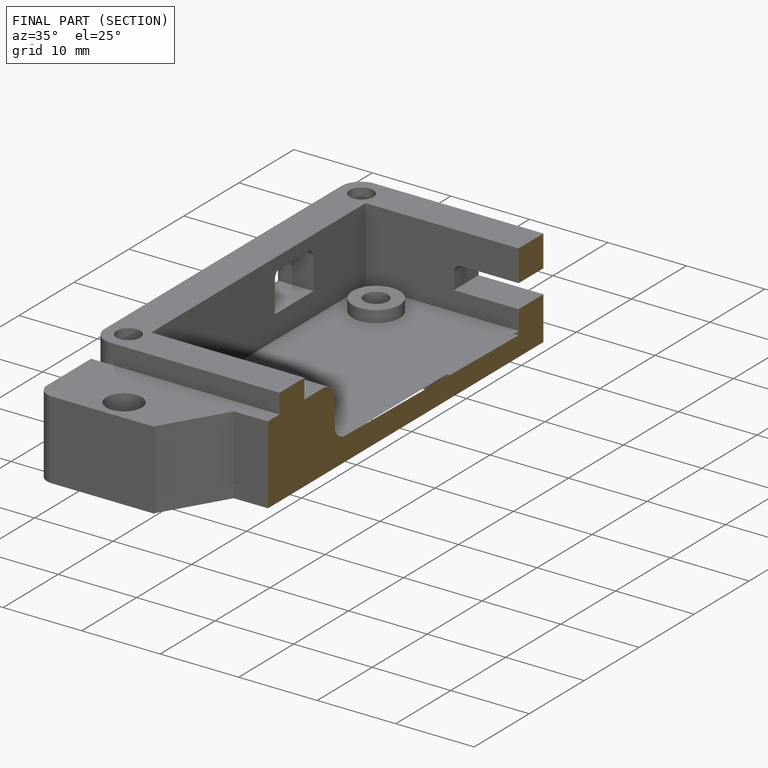
[diagram: finished part — half-section view (interior)]
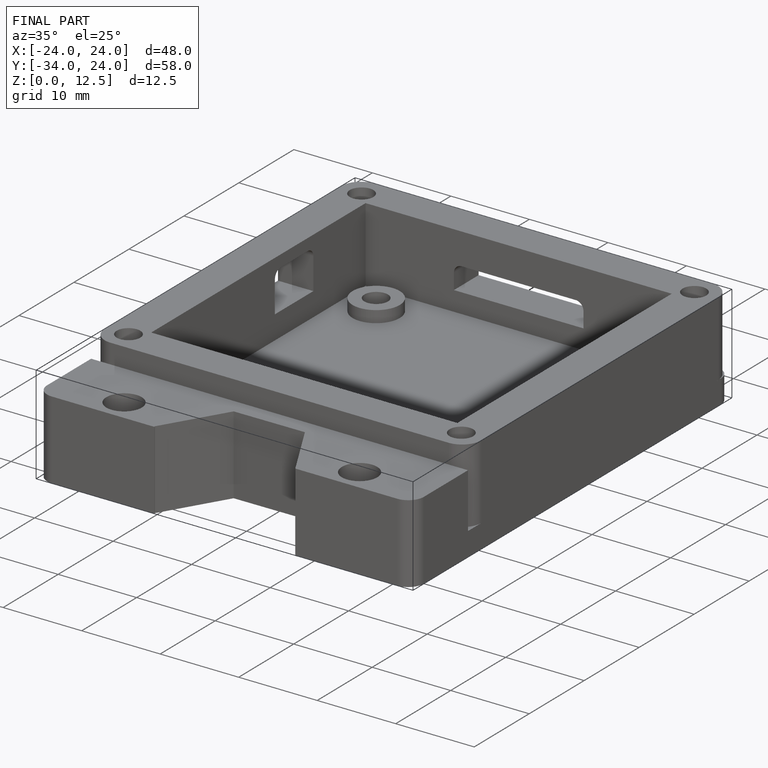
[diagram: finished part — iso view with bounding-box wireframe]
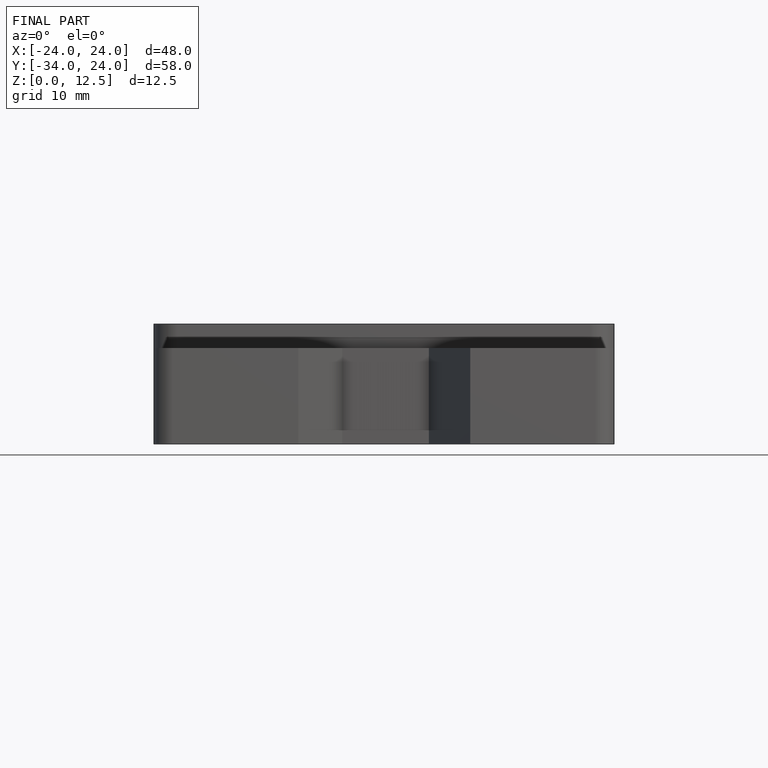
[diagram: finished part — front view with bounding-box wireframe]
